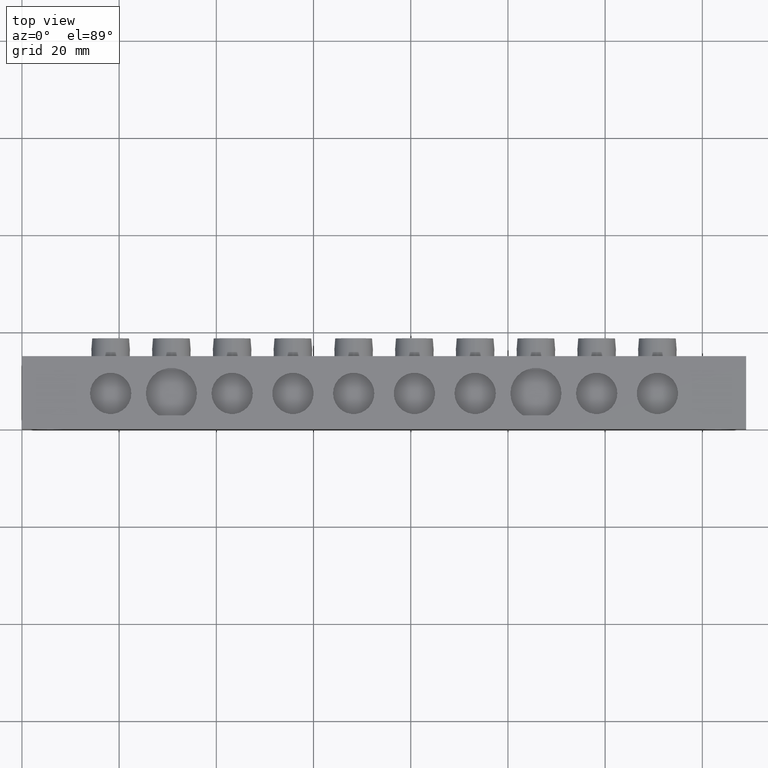
[diagram: clean part render]
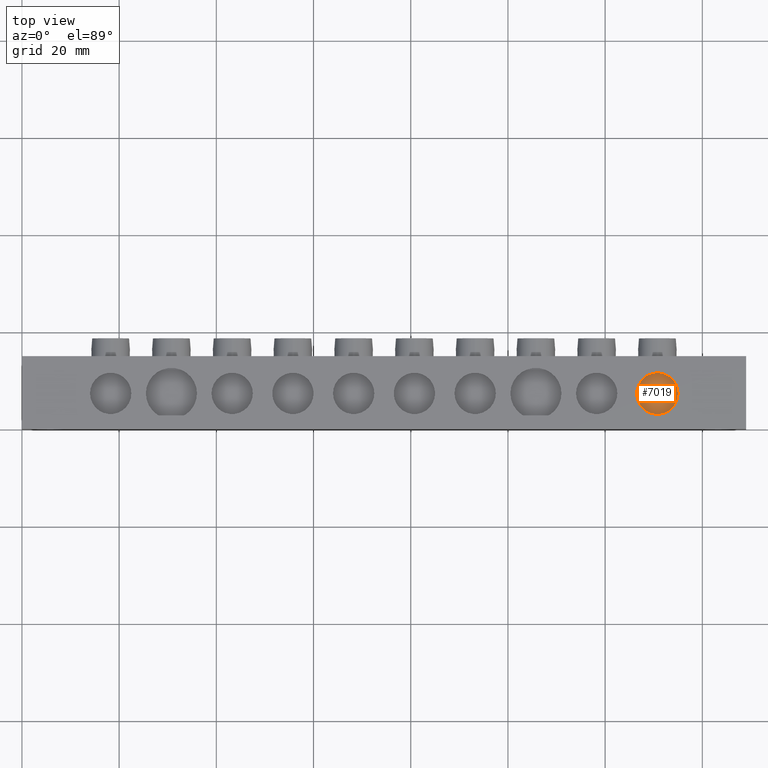
[diagram: same view with one face highlighted and labeled with its STEP entity id]
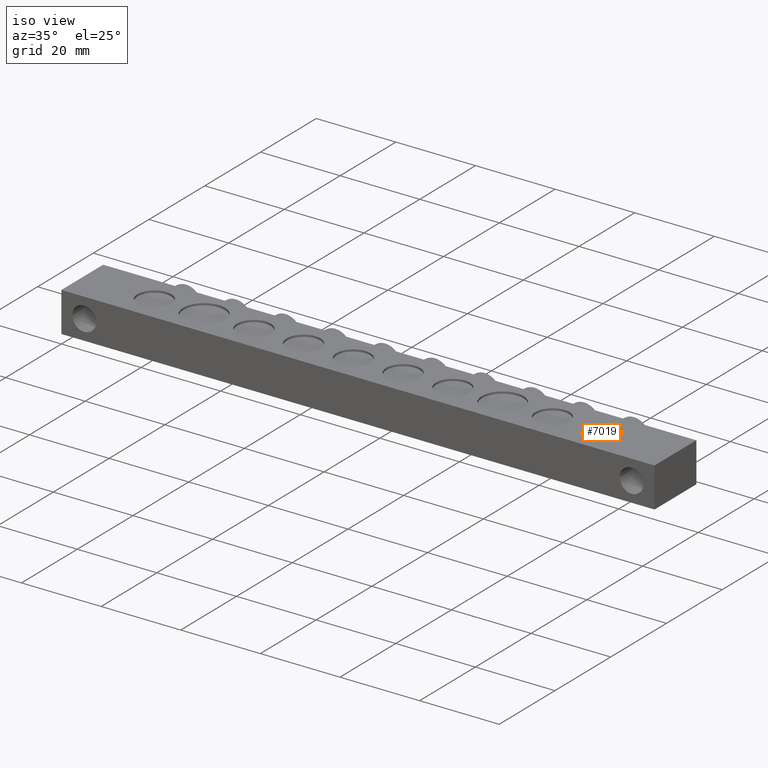
[diagram: same view with one face highlighted and labeled with its STEP entity id]
A machine part, top view. The second image highlights one B-rep face of the part: STEP entity #7019.
A second angle (iso view) of the same face is appended — the face is thin or edge-on in the first view.
In plain terms, the highlighted planar face has unit normal (0, 0, -1).
Its self-contained STEP definition (entity closure, byte-faithful):
#213 = VERTEX_POINT ( 'NONE', #1287 ) ;
#224 = VERTEX_POINT ( 'NONE', #6008 ) ;
#430 = ORIENTED_EDGE ( 'NONE', *, *, #4195, .T. ) ;
#451 = ORIENTED_EDGE ( 'NONE', *, *, #3792, .T. ) ;
#945 = EDGE_LOOP ( 'NONE', ( #430, #451 ) ) ;
#1287 = CARTESIAN_POINT ( 'NONE',  ( 135.0000000000000000, 7.299999999999998900, -0.5000000000000004400 ) ) ;
#1389 = AXIS2_PLACEMENT_3D ( 'NONE', #4309, #4337, #4336 ) ;
#1404 = CIRCLE ( 'NONE', #1430, 4.250000000000003600 ) ;
#1430 = AXIS2_PLACEMENT_3D ( 'NONE', #4941, #4942, #4921 ) ;
#1803 = CARTESIAN_POINT ( 'NONE',  ( 130.7500000000000000, 7.299999999999998900, -0.5000000000000004400 ) ) ;
#1811 = DIRECTION ( 'NONE',  ( 1.000000000000000000, 0.0000000000000000000, 0.0000000000000000000 ) ) ;
#1816 = DIRECTION ( 'NONE',  ( 0.0000000000000000000, 0.0000000000000000000, 1.000000000000000000 ) ) ;
#2451 = CIRCLE ( 'NONE', #2462, 4.250000000000003600 ) ;
#2462 = AXIS2_PLACEMENT_3D ( 'NONE', #1803, #1816, #1811 ) ;
#3792 = EDGE_CURVE ( 'NONE', #224, #213, #2451, .T. ) ;
#4195 = EDGE_CURVE ( 'NONE', #213, #224, #1404, .T. ) ;
#4289 = FACE_OUTER_BOUND ( 'NONE', #945, .T. ) ;
#4309 = CARTESIAN_POINT ( 'NONE',  ( 137.2026877376128800, 0.5000000000000038900, -0.5000000000000000000 ) ) ;
#4332 = PLANE ( 'NONE',  #1389 ) ;
#4336 = DIRECTION ( 'NONE',  ( -1.000000000000000000, 0.0000000000000000000, -0.0000000000000000000 ) ) ;
#4337 = DIRECTION ( 'NONE',  ( 0.0000000000000000000, 0.0000000000000000000, -1.000000000000000000 ) ) ;
#4921 = DIRECTION ( 'NONE',  ( 1.000000000000000000, 0.0000000000000000000, 0.0000000000000000000 ) ) ;
#4941 = CARTESIAN_POINT ( 'NONE',  ( 130.7500000000000000, 7.299999999999998900, -0.5000000000000004400 ) ) ;
#4942 = DIRECTION ( 'NONE',  ( 0.0000000000000000000, 0.0000000000000000000, 1.000000000000000000 ) ) ;
#6008 = CARTESIAN_POINT ( 'NONE',  ( 126.5000000000000000, 7.299999999999999800, -0.5000000000000004400 ) ) ;
#7019 = ADVANCED_FACE ( 'NONE', ( #4289 ), #4332, .F. ) ;